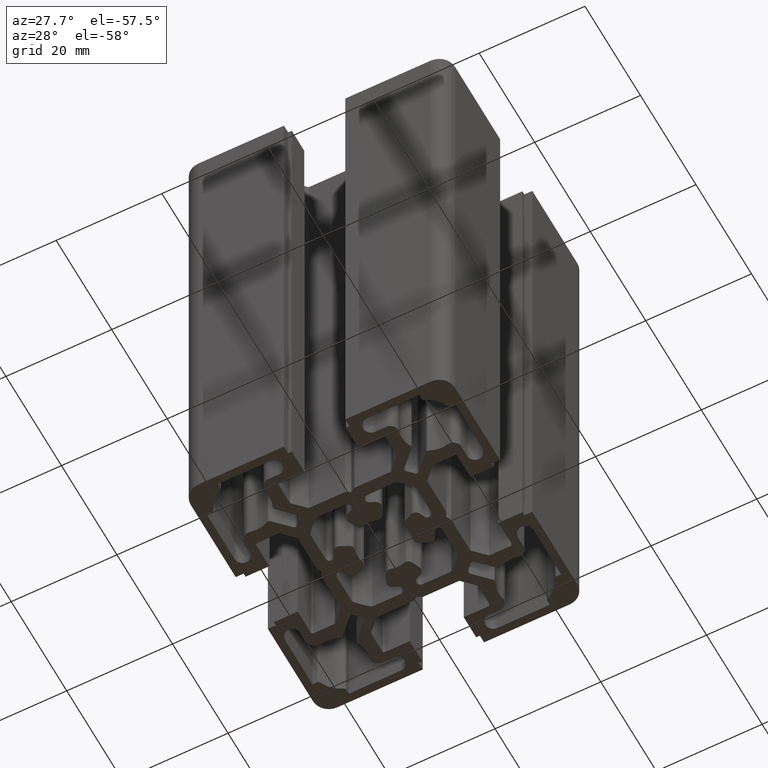
[diagram: clean part render]
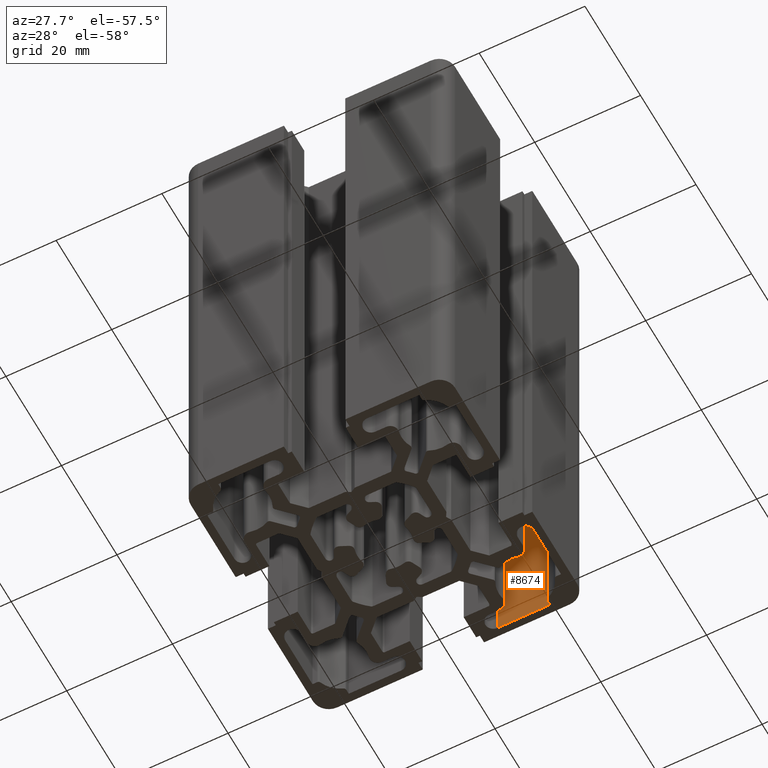
[diagram: same view with one face highlighted and labeled with its STEP entity id]
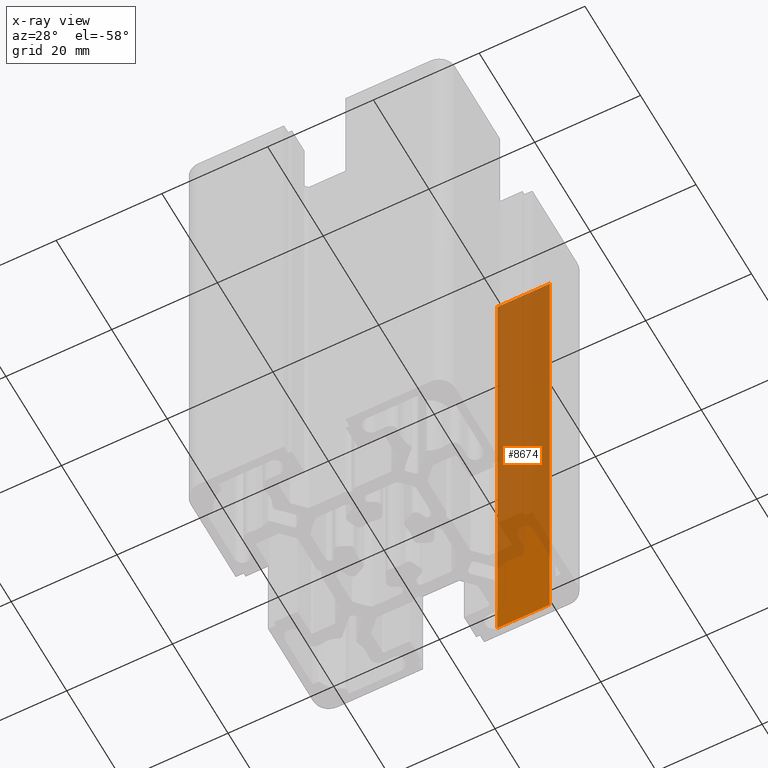
[diagram: x-ray of the same camera — body ghosted, the highlighted face saturated]
A machine part, auxiliary view. The second image highlights one B-rep face of the part: STEP entity #8674.
The next image is the same camera in x-ray: the body ghosted, the highlighted face saturated — about 79% of this face is hidden behind the body in this view.
In plain terms, the highlighted planar face has unit normal (0, -1, 0).
Its self-contained STEP definition (entity closure, byte-faithful):
#380 = VERTEX_POINT ( 'NONE', #3605 ) ;
#419 = EDGE_CURVE ( 'NONE', #380, #430, #3687, .T. ) ;
#430 = VERTEX_POINT ( 'NONE', #3720 ) ;
#1040 = EDGE_CURVE ( 'NONE', #1046, #380, #4813, .T. ) ;
#1046 = VERTEX_POINT ( 'NONE', #4824 ) ;
#1763 = EDGE_CURVE ( 'NONE', #1770, #430, #6100, .T. ) ;
#1770 = VERTEX_POINT ( 'NONE', #6099 ) ;
#3605 = CARTESIAN_POINT ( 'NONE',  ( 9.099999999999958800, 23.50000000000001100, 100.0000000000000000 ) ) ;
#3684 = DIRECTION ( 'NONE',  ( -0.0000000000000000000, -0.0000000000000000000, -1.000000000000000000 ) ) ;
#3685 = VECTOR ( 'NONE', #3684, 1000.000000000000000 ) ;
#3686 = CARTESIAN_POINT ( 'NONE',  ( 9.099999999999958800, 23.50000000000001100, 100.0000000000000000 ) ) ;
#3687 = LINE ( 'NONE', #3686, #3685 ) ;
#3720 = CARTESIAN_POINT ( 'NONE',  ( 9.099999999999958800, 23.50000000000001100, 0.0000000000000000000 ) ) ;
#4809 = CARTESIAN_POINT ( 'NONE',  ( 9.099999999999958800, 23.50000000000001100, 100.0000000000000000 ) ) ;
#4813 = LINE ( 'NONE', #4809, #4852 ) ;
#4824 = CARTESIAN_POINT ( 'NONE',  ( 18.99999999999996100, 23.50000000000002800, 100.0000000000000000 ) ) ;
#4851 = DIRECTION ( 'NONE',  ( -1.000000000000000000, -1.752245935330107700E-015, -0.0000000000000000000 ) ) ;
#4852 = VECTOR ( 'NONE', #4851, 1000.000000000000000 ) ;
#6099 = CARTESIAN_POINT ( 'NONE',  ( 18.99999999999996100, 23.50000000000002800, 0.0000000000000000000 ) ) ;
#6100 = LINE ( 'NONE', #6149, #6148 ) ;
#6147 = DIRECTION ( 'NONE',  ( -1.000000000000000000, -1.752245935330107700E-015, -0.0000000000000000000 ) ) ;
#6148 = VECTOR ( 'NONE', #6147, 1000.000000000000000 ) ;
#6149 = CARTESIAN_POINT ( 'NONE',  ( 9.099999999999958800, 23.50000000000001100, 0.0000000000000000000 ) ) ;
#8327 = AXIS2_PLACEMENT_3D ( 'NONE', #8330, #8329, #8332 ) ;
#8329 = DIRECTION ( 'NONE',  ( 1.752245935330107700E-015, -1.000000000000000000, 0.0000000000000000000 ) ) ;
#8330 = CARTESIAN_POINT ( 'NONE',  ( 9.099999999999958800, 23.50000000000001100, 100.0000000000000000 ) ) ;
#8332 = DIRECTION ( 'NONE',  ( 1.000000000000000000, 1.752245935330107700E-015, 0.0000000000000000000 ) ) ;
#8337 = PLANE ( 'NONE',  #8327 ) ;
#8338 = FACE_OUTER_BOUND ( 'NONE', #8657, .T. ) ;
#8365 = DIRECTION ( 'NONE',  ( -0.0000000000000000000, -0.0000000000000000000, -1.000000000000000000 ) ) ;
#8366 = VECTOR ( 'NONE', #8365, 1000.000000000000000 ) ;
#8367 = CARTESIAN_POINT ( 'NONE',  ( 18.99999999999996100, 23.50000000000002800, 100.0000000000000000 ) ) ;
#8368 = LINE ( 'NONE', #8367, #8366 ) ;
#8657 = EDGE_LOOP ( 'NONE', ( #8671, #8673, #8670, #8666 ) ) ;
#8666 = ORIENTED_EDGE ( 'NONE', *, *, #419, .T. ) ;
#8670 = ORIENTED_EDGE ( 'NONE', *, *, #1040, .T. ) ;
#8671 = ORIENTED_EDGE ( 'NONE', *, *, #1763, .F. ) ;
#8673 = ORIENTED_EDGE ( 'NONE', *, *, #8679, .F. ) ;
#8674 = ADVANCED_FACE ( 'NONE', ( #8338 ), #8337, .T. ) ;
#8679 = EDGE_CURVE ( 'NONE', #1046, #1770, #8368, .T. ) ;